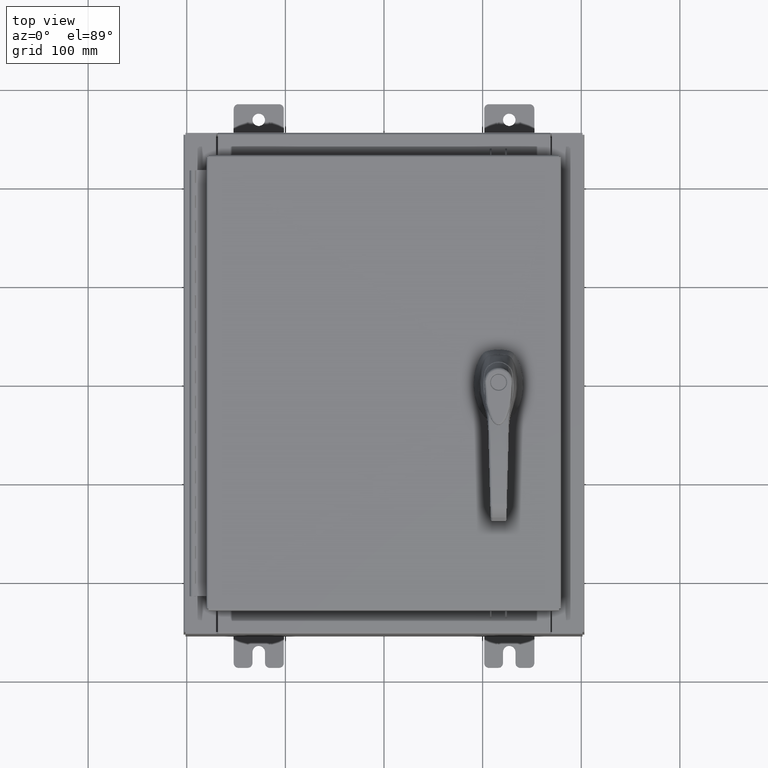
[diagram: clean part render]
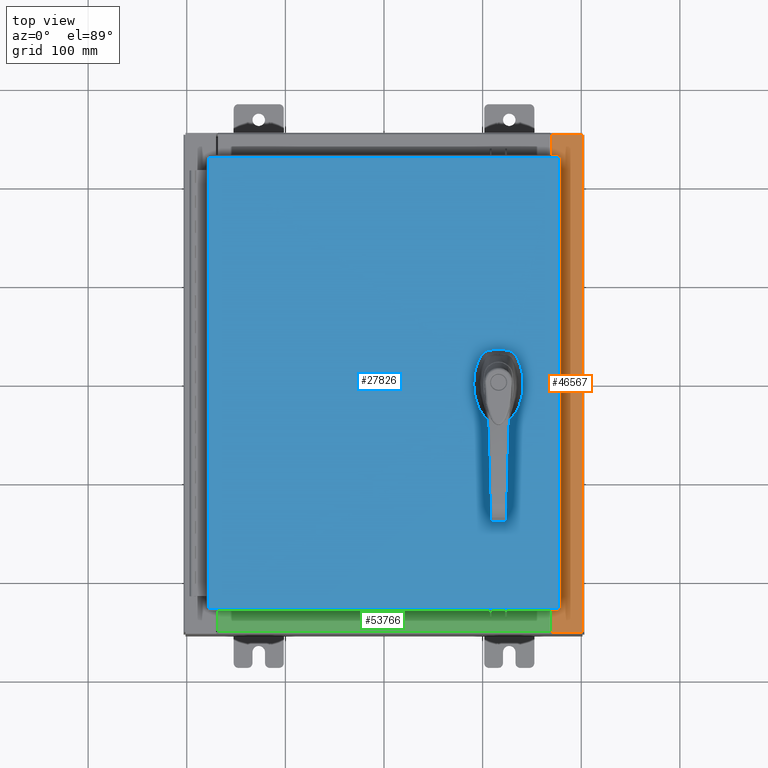
[diagram: same view with three faces highlighted in distinct colors, each labeled with its STEP entity id]
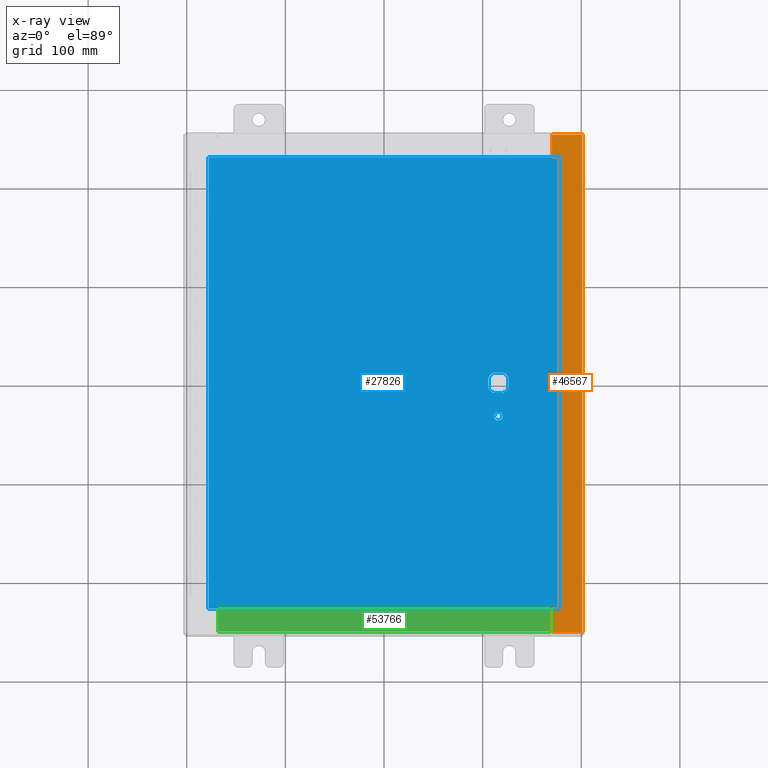
[diagram: x-ray of the same camera — body ghosted, the three highlighted faces saturated]
A machine part, top view with three faces highlighted in distinct colors.
The next image is the same camera in x-ray (body ghosted, the three faces saturated) — at least one of them is partly hidden behind the body in this view.
Their STEP definitions:

[orange] entity #46567 — the highlighted planar face has unit normal (-0, 0, -1).
#1275 = ORIENTED_EDGE ( 'NONE', *, *, #13532, .F. ) ;
#1575 = DIRECTION ( 'NONE',  ( 1.000000000000000000, -7.444398091725592200E-046, -7.132762385546378400E-015 ) ) ;
#2597 = LINE ( 'NONE', #100679, #45268 ) ;
#2701 = DIRECTION ( 'NONE',  ( -1.000000000000000000, 0.0000000000000000000, 7.132762385546378400E-015 ) ) ;
#4849 = EDGE_CURVE ( 'NONE', #49731, #96550, #25839, .T. ) ;
#5093 = CARTESIAN_POINT ( 'NONE',  ( 6.750050000000025600, 8.631099999999994700, 5.925300000000008000 ) ) ;
#5199 = ORIENTED_EDGE ( 'NONE', *, *, #28843, .F. ) ;
#6036 = EDGE_LOOP ( 'NONE', ( #91610, #76051, #74193, #34728, #87117, #10322, #1275, #101925, #26313, #68789, #5199, #72799 ) ) ;
#10322 = ORIENTED_EDGE ( 'NONE', *, *, #77918, .T. ) ;
#11658 = VERTEX_POINT ( 'NONE', #43605 ) ;
#13140 = VECTOR ( 'NONE', #104196, 39.37007874015748100 ) ;
#13481 = DIRECTION ( 'NONE',  ( 1.000000000000000000, 0.0000000000000000000, 0.0000000000000000000 ) ) ;
#13532 = EDGE_CURVE ( 'NONE', #96550, #68484, #99006, .T. ) ;
#14982 = CARTESIAN_POINT ( 'NONE',  ( 6.712700000000025600, -8.593750000000005300, 5.925300000000008000 ) ) ;
#18379 = CARTESIAN_POINT ( 'NONE',  ( 6.699700000000024900, -8.631100000000005300, 5.925300000000008000 ) ) ;
#18463 = EDGE_CURVE ( 'NONE', #95898, #49731, #83893, .T. ) ;
#18707 = CARTESIAN_POINT ( 'NONE',  ( 6.712700000000025600, 8.593749999999994700, 5.925300000000008000 ) ) ;
#19778 = CARTESIAN_POINT ( 'NONE',  ( 6.699700000000024900, -8.631100000000005300, 5.925300000000008000 ) ) ;
#19848 = LINE ( 'NONE', #18379, #105401 ) ;
#19889 = CIRCLE ( 'NONE', #64081, 0.01867499999999949400 ) ;
#20727 = CARTESIAN_POINT ( 'NONE',  ( 6.699700000000024000, 4.114355251618783500E-016, 5.925300000000008000 ) ) ;
#21546 = DIRECTION ( 'NONE',  ( 7.132762385546378400E-015, -5.504816970095138400E-017, 1.000000000000000000 ) ) ;
#22935 = VERTEX_POINT ( 'NONE', #37756 ) ;
#23520 = DIRECTION ( 'NONE',  ( -0.0000000000000000000, 1.000000000000000000, -0.0000000000000000000 ) ) ;
#25839 = CIRCLE ( 'NONE', #88504, 0.01867499999999949400 ) ;
#26313 = ORIENTED_EDGE ( 'NONE', *, *, #18463, .F. ) ;
#26600 = VERTEX_POINT ( 'NONE', #92454 ) ;
#28738 = DIRECTION ( 'NONE',  ( -0.0000000000000000000, -1.000000000000000000, -5.504816970095139000E-017 ) ) ;
#28843 = EDGE_CURVE ( 'NONE', #107514, #36433, #2597, .T. ) ;
#29500 = EDGE_CURVE ( 'NONE', #36433, #95898, #85668, .T. ) ;
#34728 = ORIENTED_EDGE ( 'NONE', *, *, #69273, .F. ) ;
#36301 = CARTESIAN_POINT ( 'NONE',  ( 6.699700000000024900, -9.925300000000001800, 5.925300000000007100 ) ) ;
#36433 = VERTEX_POINT ( 'NONE', #96693 ) ;
#36619 = VECTOR ( 'NONE', #28738, 39.37007874015748100 ) ;
#37756 = CARTESIAN_POINT ( 'NONE',  ( 6.699700000000022200, 9.925299999999992900, 5.925300000000008000 ) ) ;
#40240 = VECTOR ( 'NONE', #23520, 39.37007874015748100 ) ;
#43605 = CARTESIAN_POINT ( 'NONE',  ( 7.912300000000022300, 9.925299999999991100, 5.925299999999999100 ) ) ;
#44574 = CARTESIAN_POINT ( 'NONE',  ( 6.750050000000025600, 8.593749999999992900, 5.925300000000008000 ) ) ;
#45185 = CARTESIAN_POINT ( 'NONE',  ( 4.252457061908993700E-014, -3.261769199290503100E-016, 5.925300000000056000 ) ) ;
#45268 = VECTOR ( 'NONE', #109638, 39.37007874015748100 ) ;
#46567 = ADVANCED_FACE ( 'NONE', ( #58862 ), #62046, .F. ) ;
#47529 = LINE ( 'NONE', #52627, #50210 ) ;
#49731 = VERTEX_POINT ( 'NONE', #44574 ) ;
#49772 = VECTOR ( 'NONE', #63296, 39.37007874015748100 ) ;
#50210 = VECTOR ( 'NONE', #1575, 39.37007874015748100 ) ;
#52479 = LINE ( 'NONE', #20727, #49772 ) ;
#52627 = CARTESIAN_POINT ( 'NONE',  ( 4.252457061908993100E-014, -9.925300000000001800, 5.925300000000055100 ) ) ;
#53552 = VECTOR ( 'NONE', #103804, 39.37007874015748100 ) ;
#53761 = DIRECTION ( 'NONE',  ( -7.132762385546378400E-015, 5.504816970095137800E-017, -1.000000000000000000 ) ) ;
#56401 = EDGE_CURVE ( 'NONE', #11658, #22935, #105983, .T. ) ;
#57426 = CARTESIAN_POINT ( 'NONE',  ( 6.750050000000025600, 8.631099999999994700, 5.925300000000008000 ) ) ;
#58157 = EDGE_CURVE ( 'NONE', #91903, #105933, #52479, .T. ) ;
#58862 = FACE_OUTER_BOUND ( 'NONE', #6036, .T. ) ;
#59341 = LINE ( 'NONE', #105332, #36619 ) ;
#60305 = CARTESIAN_POINT ( 'NONE',  ( 6.712700000000025600, 8.593749999999994700, 5.925300000000008000 ) ) ;
#62046 = PLANE ( 'NONE',  #92303 ) ;
#63296 = DIRECTION ( 'NONE',  ( 1.100963394019027800E-016, -1.000000000000000000, -5.504816970095217300E-017 ) ) ;
#64081 = AXIS2_PLACEMENT_3D ( 'NONE', #72745, #21546, #81290 ) ;
#68484 = VERTEX_POINT ( 'NONE', #80833 ) ;
#68789 = ORIENTED_EDGE ( 'NONE', *, *, #29500, .F. ) ;
#69273 = EDGE_CURVE ( 'NONE', #11658, #26600, #59341, .T. ) ;
#72745 = CARTESIAN_POINT ( 'NONE',  ( 6.750050000000025600, -8.612425000000005300, 5.925300000000008000 ) ) ;
#72799 = ORIENTED_EDGE ( 'NONE', *, *, #108910, .F. ) ;
#74193 = ORIENTED_EDGE ( 'NONE', *, *, #80225, .T. ) ;
#74548 = CARTESIAN_POINT ( 'NONE',  ( 4.252457061908994400E-014, 9.925299999999996500, 5.925300000000056000 ) ) ;
#76051 = ORIENTED_EDGE ( 'NONE', *, *, #58157, .T. ) ;
#76313 = CARTESIAN_POINT ( 'NONE',  ( 6.699700000000024000, 4.114355251618783500E-016, 5.925300000000008000 ) ) ;
#77918 = EDGE_CURVE ( 'NONE', #22935, #68484, #90399, .T. ) ;
#80225 = EDGE_CURVE ( 'NONE', #105933, #26600, #47529, .T. ) ;
#80833 = CARTESIAN_POINT ( 'NONE',  ( 6.699700000000022200, 8.631099999999994700, 5.925300000000008000 ) ) ;
#81290 = DIRECTION ( 'NONE',  ( 1.000000000000000000, 0.0000000000000000000, 0.0000000000000000000 ) ) ;
#83186 = VECTOR ( 'NONE', #100339, 39.37007874015748100 ) ;
#83893 = LINE ( 'NONE', #18707, #13140 ) ;
#85668 = LINE ( 'NONE', #14982, #40240 ) ;
#86959 = VERTEX_POINT ( 'NONE', #109766 ) ;
#87117 = ORIENTED_EDGE ( 'NONE', *, *, #56401, .T. ) ;
#88504 = AXIS2_PLACEMENT_3D ( 'NONE', #101321, #100949, #13481 ) ;
#88690 = EDGE_CURVE ( 'NONE', #91903, #86959, #19848, .T. ) ;
#90399 = LINE ( 'NONE', #76313, #110500 ) ;
#90515 = CARTESIAN_POINT ( 'NONE',  ( 6.750050000000025600, -8.593750000000005300, 5.925300000000008000 ) ) ;
#91610 = ORIENTED_EDGE ( 'NONE', *, *, #88690, .F. ) ;
#91903 = VERTEX_POINT ( 'NONE', #19778 ) ;
#91966 = DIRECTION ( 'NONE',  ( 1.100963394019027800E-016, -1.000000000000000000, -5.504816970095217300E-017 ) ) ;
#92303 = AXIS2_PLACEMENT_3D ( 'NONE', #45185, #53761, #2701 ) ;
#92454 = CARTESIAN_POINT ( 'NONE',  ( 7.912300000000022300, -9.925300000000001800, 5.925299999999999100 ) ) ;
#94880 = DIRECTION ( 'NONE',  ( 1.000000000000000000, 2.170286390199955400E-014, 0.0000000000000000000 ) ) ;
#95898 = VERTEX_POINT ( 'NONE', #60305 ) ;
#96550 = VERTEX_POINT ( 'NONE', #57426 ) ;
#96693 = CARTESIAN_POINT ( 'NONE',  ( 6.712700000000025600, -8.593750000000005300, 5.925300000000008000 ) ) ;
#99006 = LINE ( 'NONE', #5093, #53552 ) ;
#100339 = DIRECTION ( 'NONE',  ( -1.000000000000000000, 4.379057701015053300E-047, 7.132762385546378400E-015 ) ) ;
#100679 = CARTESIAN_POINT ( 'NONE',  ( 6.750050000000025600, -8.593750000000005300, 5.925300000000008000 ) ) ;
#100949 = DIRECTION ( 'NONE',  ( 7.132762385546378400E-015, -5.504816970095138400E-017, 1.000000000000000000 ) ) ;
#101321 = CARTESIAN_POINT ( 'NONE',  ( 6.750050000000025600, 8.612424999999992900, 5.925300000000008000 ) ) ;
#101925 = ORIENTED_EDGE ( 'NONE', *, *, #4849, .F. ) ;
#103804 = DIRECTION ( 'NONE',  ( -1.000000000000000000, 2.170286390199861100E-014, 0.0000000000000000000 ) ) ;
#104196 = DIRECTION ( 'NONE',  ( 1.000000000000000000, 0.0000000000000000000, 0.0000000000000000000 ) ) ;
#105332 = CARTESIAN_POINT ( 'NONE',  ( 7.912300000000022300, -9.925300000000001800, 5.925299999999999100 ) ) ;
#105401 = VECTOR ( 'NONE', #94880, 39.37007874015748100 ) ;
#105933 = VERTEX_POINT ( 'NONE', #36301 ) ;
#105983 = LINE ( 'NONE', #74548, #83186 ) ;
#107514 = VERTEX_POINT ( 'NONE', #90515 ) ;
#108910 = EDGE_CURVE ( 'NONE', #86959, #107514, #19889, .T. ) ;
#109638 = DIRECTION ( 'NONE',  ( -1.000000000000000000, 0.0000000000000000000, 0.0000000000000000000 ) ) ;
#109766 = CARTESIAN_POINT ( 'NONE',  ( 6.750050000000025600, -8.631100000000005300, 5.925300000000008000 ) ) ;
#110500 = VECTOR ( 'NONE', #91966, 39.37007874015748100 ) ;

[blue] entity #27826 — the highlighted planar face has unit normal (0, 0, -1).
#78 = CARTESIAN_POINT ( 'NONE',  ( 4.578000000000002100, -1.338000000000000100, 0.0000000000000000000 ) ) ;
#506 = CARTESIAN_POINT ( 'NONE',  ( 4.578000000000002100, 0.0000000000000000000, 0.0000000000000000000 ) ) ;
#1888 = DIRECTION ( 'NONE',  ( 1.000000000000000000, 0.0000000000000000000, 0.0000000000000000000 ) ) ;
#2697 = FACE_OUTER_BOUND ( 'NONE', #93119, .T. ) ;
#3861 = VERTEX_POINT ( 'NONE', #26881 ) ;
#4326 = VERTEX_POINT ( 'NONE', #97590 ) ;
#5205 = LINE ( 'NONE', #9085, #47846 ) ;
#5510 = VERTEX_POINT ( 'NONE', #97609 ) ;
#5977 = LINE ( 'NONE', #110473, #54010 ) ;
#6381 = DIRECTION ( 'NONE',  ( -1.000000000000000000, 0.0000000000000000000, -0.0000000000000000000 ) ) ;
#6542 = EDGE_CURVE ( 'NONE', #72094, #80399, #93724, .T. ) ;
#6895 = CARTESIAN_POINT ( 'NONE',  ( 4.980999999999927900, 0.0000000000000000000, 0.0000000000000000000 ) ) ;
#7390 = CARTESIAN_POINT ( 'NONE',  ( -6.990299999999997700, -9.006299999999997800, -2.219626494852214000E-016 ) ) ;
#8653 = DIRECTION ( 'NONE',  ( 1.000000000000000000, 0.0000000000000000000, 0.0000000000000000000 ) ) ;
#9012 = EDGE_CURVE ( 'NONE', #63940, #59156, #81397, .T. ) ;
#9066 = DIRECTION ( 'NONE',  ( 1.000000000000000000, 0.0000000000000000000, 0.0000000000000000000 ) ) ;
#9085 = CARTESIAN_POINT ( 'NONE',  ( 0.0000000000000000000, 0.4029999999999252000, 0.0000000000000000000 ) ) ;
#10186 = VERTEX_POINT ( 'NONE', #65317 ) ;
#12626 = CARTESIAN_POINT ( 'NONE',  ( 4.980999999999927900, -0.2002273707563079800, 0.0000000000000000000 ) ) ;
#14492 = AXIS2_PLACEMENT_3D ( 'NONE', #506, #60162, #9066 ) ;
#18389 = CARTESIAN_POINT ( 'NONE',  ( 6.990300000000002200, 9.006300000000001300, -7.683322482180740400E-016 ) ) ;
#18668 = CARTESIAN_POINT ( 'NONE',  ( 4.175000000000076200, 0.0000000000000000000, 0.0000000000000000000 ) ) ;
#19246 = AXIS2_PLACEMENT_3D ( 'NONE', #91425, #57452, #6381 ) ;
#19265 = DIRECTION ( 'NONE',  ( -0.0000000000000000000, 0.0000000000000000000, 1.000000000000000000 ) ) ;
#19331 = CARTESIAN_POINT ( 'NONE',  ( 4.377772629243692900, 0.4029999999999252000, 0.0000000000000000000 ) ) ;
#20363 = VERTEX_POINT ( 'NONE', #79556 ) ;
#21952 = EDGE_CURVE ( 'NONE', #51172, #104739, #43457, .T. ) ;
#24707 = LINE ( 'NONE', #27659, #87462 ) ;
#26881 = CARTESIAN_POINT ( 'NONE',  ( 4.406500000000002100, -1.338000000000000100, 0.0000000000000000000 ) ) ;
#27230 = DIRECTION ( 'NONE',  ( 0.0000000000000000000, -1.000000000000000000, 0.0000000000000000000 ) ) ;
#27659 = CARTESIAN_POINT ( 'NONE',  ( -6.990299999999997700, 9.006300000000001300, -2.048885995248197400E-016 ) ) ;
#27826 = ADVANCED_FACE ( 'NONE', ( #28031, #2697, #48000 ), #65685, .F. ) ;
#28031 = FACE_BOUND ( 'NONE', #78044, .T. ) ;
#29402 = ORIENTED_EDGE ( 'NONE', *, *, #64667, .F. ) ;
#30843 = EDGE_LOOP ( 'NONE', ( #53469, #36324, #97868, #29402, #31611, #90091, #79398, #101398 ) ) ;
#31587 = VECTOR ( 'NONE', #27230, 39.37007874015748100 ) ;
#31611 = ORIENTED_EDGE ( 'NONE', *, *, #97529, .F. ) ;
#31816 = CARTESIAN_POINT ( 'NONE',  ( 0.0000000000000000000, -0.4029999999999252000, 0.0000000000000000000 ) ) ;
#33777 = EDGE_CURVE ( 'NONE', #55649, #3861, #74533, .T. ) ;
#36324 = ORIENTED_EDGE ( 'NONE', *, *, #85454, .F. ) ;
#36358 = EDGE_CURVE ( 'NONE', #59156, #97720, #24707, .T. ) ;
#37042 = CIRCLE ( 'NONE', #14492, 0.4499999999999156900 ) ;
#40422 = EDGE_CURVE ( 'NONE', #4326, #63940, #53593, .T. ) ;
#40454 = DIRECTION ( 'NONE',  ( 0.0000000000000000000, -1.000000000000000000, 0.0000000000000000000 ) ) ;
#40986 = AXIS2_PLACEMENT_3D ( 'NONE', #78, #59730, #8653 ) ;
#41478 = ORIENTED_EDGE ( 'NONE', *, *, #9012, .T. ) ;
#42322 = CARTESIAN_POINT ( 'NONE',  ( 4.578000000000002100, 0.0000000000000000000, 0.0000000000000000000 ) ) ;
#43180 = CIRCLE ( 'NONE', #94299, 0.1715000000000000700 ) ;
#43457 = LINE ( 'NONE', #6895, #46079 ) ;
#46079 = VECTOR ( 'NONE', #40454, 39.37007874015748100 ) ;
#47846 = VECTOR ( 'NONE', #68773, 39.37007874015748100 ) ;
#48000 = FACE_BOUND ( 'NONE', #30843, .T. ) ;
#48250 = VECTOR ( 'NONE', #61191, 39.37007874015748100 ) ;
#48738 = DIRECTION ( 'NONE',  ( -0.0000000000000000000, 0.0000000000000000000, 1.000000000000000000 ) ) ;
#50651 = DIRECTION ( 'NONE',  ( 1.000000000000000000, -0.0000000000000000000, -0.0000000000000000000 ) ) ;
#50874 = DIRECTION ( 'NONE',  ( 1.000000000000000000, 0.0000000000000000000, 0.0000000000000000000 ) ) ;
#51172 = VERTEX_POINT ( 'NONE', #79039 ) ;
#52921 = DIRECTION ( 'NONE',  ( -0.0000000000000000000, 0.0000000000000000000, 1.000000000000000000 ) ) ;
#53469 = ORIENTED_EDGE ( 'NONE', *, *, #21952, .T. ) ;
#53593 = LINE ( 'NONE', #61680, #96368 ) ;
#54010 = VECTOR ( 'NONE', #50651, 39.37007874015748100 ) ;
#54290 = LINE ( 'NONE', #18668, #31587 ) ;
#55215 = DIRECTION ( 'NONE',  ( -1.000000000000000000, -0.0000000000000000000, -0.0000000000000000000 ) ) ;
#55649 = VERTEX_POINT ( 'NONE', #100481 ) ;
#55756 = CARTESIAN_POINT ( 'NONE',  ( -6.990299999999997700, 9.006300000000001300, -2.048885995248197400E-016 ) ) ;
#56565 = AXIS2_PLACEMENT_3D ( 'NONE', #104129, #52921, #1888 ) ;
#56883 = ORIENTED_EDGE ( 'NONE', *, *, #101794, .T. ) ;
#57452 = DIRECTION ( 'NONE',  ( 0.0000000000000000000, 0.0000000000000000000, -1.000000000000000000 ) ) ;
#57788 = EDGE_CURVE ( 'NONE', #3861, #55649, #43180, .T. ) ;
#58220 = ORIENTED_EDGE ( 'NONE', *, *, #57788, .F. ) ;
#58694 = VECTOR ( 'NONE', #55215, 39.37007874015748100 ) ;
#59156 = VERTEX_POINT ( 'NONE', #55756 ) ;
#59730 = DIRECTION ( 'NONE',  ( -0.0000000000000000000, 0.0000000000000000000, 1.000000000000000000 ) ) ;
#60084 = ORIENTED_EDGE ( 'NONE', *, *, #40422, .T. ) ;
#60162 = DIRECTION ( 'NONE',  ( -0.0000000000000000000, 0.0000000000000000000, 1.000000000000000000 ) ) ;
#61191 = DIRECTION ( 'NONE',  ( 1.000000000000000000, 0.0000000000000000000, 0.0000000000000000000 ) ) ;
#61680 = CARTESIAN_POINT ( 'NONE',  ( 6.990300000000002200, -9.006299999999997800, -2.219626494852214000E-016 ) ) ;
#63940 = VERTEX_POINT ( 'NONE', #109636 ) ;
#64667 = EDGE_CURVE ( 'NONE', #20363, #72094, #37042, .T. ) ;
#65012 = CIRCLE ( 'NONE', #86995, 0.4499999999999156900 ) ;
#65317 = CARTESIAN_POINT ( 'NONE',  ( 4.175000000000076200, 0.2002273707563079800, 0.0000000000000000000 ) ) ;
#65685 = PLANE ( 'NONE',  #19246 ) ;
#68034 = DIRECTION ( 'NONE',  ( 0.0000000000000000000, 1.000000000000000000, 0.0000000000000000000 ) ) ;
#68773 = DIRECTION ( 'NONE',  ( -1.000000000000000000, 0.0000000000000000000, 0.0000000000000000000 ) ) ;
#70403 = CARTESIAN_POINT ( 'NONE',  ( 4.578000000000002100, 0.0000000000000000000, 0.0000000000000000000 ) ) ;
#71658 = CARTESIAN_POINT ( 'NONE',  ( 4.778227370756312100, -0.4029999999999252000, 0.0000000000000000000 ) ) ;
#72094 = VERTEX_POINT ( 'NONE', #78492 ) ;
#74533 = CIRCLE ( 'NONE', #40986, 0.1715000000000000700 ) ;
#77887 = EDGE_CURVE ( 'NONE', #102159, #10186, #65012, .T. ) ;
#78044 = EDGE_LOOP ( 'NONE', ( #101737, #58220 ) ) ;
#78492 = CARTESIAN_POINT ( 'NONE',  ( 4.377772629243692900, -0.4029999999999252000, 0.0000000000000000000 ) ) ;
#78986 = DIRECTION ( 'NONE',  ( 1.000000000000000000, 0.0000000000000000000, 0.0000000000000000000 ) ) ;
#79039 = CARTESIAN_POINT ( 'NONE',  ( 4.980999999999927900, 0.2002273707563080300, 0.0000000000000000000 ) ) ;
#79398 = ORIENTED_EDGE ( 'NONE', *, *, #88572, .F. ) ;
#79556 = CARTESIAN_POINT ( 'NONE',  ( 4.175000000000076200, -0.2002273707563079800, 0.0000000000000000000 ) ) ;
#80399 = VERTEX_POINT ( 'NONE', #71658 ) ;
#81397 = LINE ( 'NONE', #18389, #58694 ) ;
#85454 = EDGE_CURVE ( 'NONE', #80399, #104739, #105590, .T. ) ;
#86995 = AXIS2_PLACEMENT_3D ( 'NONE', #42322, #102104, #50874 ) ;
#87373 = DIRECTION ( 'NONE',  ( 0.0000000000000000000, -1.000000000000000000, 0.0000000000000000000 ) ) ;
#87462 = VECTOR ( 'NONE', #87373, 39.37007874015748100 ) ;
#88572 = EDGE_CURVE ( 'NONE', #5510, #102159, #5205, .T. ) ;
#90091 = ORIENTED_EDGE ( 'NONE', *, *, #77887, .F. ) ;
#91425 = CARTESIAN_POINT ( 'NONE',  ( 0.0000000000000000000, 0.0000000000000000000, 0.0000000000000000000 ) ) ;
#91778 = ORIENTED_EDGE ( 'NONE', *, *, #36358, .T. ) ;
#93119 = EDGE_LOOP ( 'NONE', ( #56883, #60084, #41478, #91778 ) ) ;
#93724 = LINE ( 'NONE', #31816, #48250 ) ;
#94299 = AXIS2_PLACEMENT_3D ( 'NONE', #99967, #48738, #108587 ) ;
#96368 = VECTOR ( 'NONE', #68034, 39.37007874015748100 ) ;
#97529 = EDGE_CURVE ( 'NONE', #10186, #20363, #54290, .T. ) ;
#97590 = CARTESIAN_POINT ( 'NONE',  ( 6.990300000000002200, -9.006299999999997800, -2.219626494852214000E-016 ) ) ;
#97609 = CARTESIAN_POINT ( 'NONE',  ( 4.778227370756312100, 0.4029999999999252000, 0.0000000000000000000 ) ) ;
#97720 = VERTEX_POINT ( 'NONE', #7390 ) ;
#97868 = ORIENTED_EDGE ( 'NONE', *, *, #6542, .F. ) ;
#99967 = CARTESIAN_POINT ( 'NONE',  ( 4.578000000000002100, -1.338000000000000100, 0.0000000000000000000 ) ) ;
#100481 = CARTESIAN_POINT ( 'NONE',  ( 4.749500000000002100, -1.338000000000000100, 0.0000000000000000000 ) ) ;
#101398 = ORIENTED_EDGE ( 'NONE', *, *, #106780, .F. ) ;
#101737 = ORIENTED_EDGE ( 'NONE', *, *, #33777, .F. ) ;
#101794 = EDGE_CURVE ( 'NONE', #97720, #4326, #5977, .T. ) ;
#102104 = DIRECTION ( 'NONE',  ( -0.0000000000000000000, 0.0000000000000000000, 1.000000000000000000 ) ) ;
#102159 = VERTEX_POINT ( 'NONE', #19331 ) ;
#102933 = CIRCLE ( 'NONE', #109101, 0.4499999999999156900 ) ;
#104129 = CARTESIAN_POINT ( 'NONE',  ( 4.578000000000002100, 0.0000000000000000000, 0.0000000000000000000 ) ) ;
#104739 = VERTEX_POINT ( 'NONE', #12626 ) ;
#105590 = CIRCLE ( 'NONE', #56565, 0.4499999999999156900 ) ;
#106780 = EDGE_CURVE ( 'NONE', #51172, #5510, #102933, .T. ) ;
#108587 = DIRECTION ( 'NONE',  ( 1.000000000000000000, 0.0000000000000000000, 0.0000000000000000000 ) ) ;
#109101 = AXIS2_PLACEMENT_3D ( 'NONE', #70403, #19265, #78986 ) ;
#109636 = CARTESIAN_POINT ( 'NONE',  ( 6.990300000000002200, 9.006300000000001300, -7.683322482180740400E-016 ) ) ;
#110473 = CARTESIAN_POINT ( 'NONE',  ( -6.990299999999997700, -9.006299999999997800, -2.219626494852214000E-016 ) ) ;

[green] entity #53766 — the highlighted planar face has unit normal (-0, -0, 1).
#3206 = DIRECTION ( 'NONE',  ( 0.0000000000000000000, -1.000000000000000000, 3.566381192773190000E-015 ) ) ;
#3548 = VERTEX_POINT ( 'NONE', #6885 ) ;
#5150 = EDGE_LOOP ( 'NONE', ( #37043, #72429, #54217, #75795 ) ) ;
#5171 = LINE ( 'NONE', #74277, #90602 ) ;
#6885 = CARTESIAN_POINT ( 'NONE',  ( 6.637200000000000000, -1.287299999999999900, 3.000000000000005300 ) ) ;
#10632 = VECTOR ( 'NONE', #39044, 39.37007874015748100 ) ;
#11394 = CARTESIAN_POINT ( 'NONE',  ( 0.0000000000000000000, 1.069354855923099900E-014, 3.000000000000000900 ) ) ;
#12874 = CARTESIAN_POINT ( 'NONE',  ( -6.637200000000000000, -0.07469999999999973900, 3.000000000000000900 ) ) ;
#13278 = LINE ( 'NONE', #90198, #10632 ) ;
#21395 = DIRECTION ( 'NONE',  ( -0.0000000000000000000, 1.000000000000000000, -3.566381192773190000E-015 ) ) ;
#26086 = VECTOR ( 'NONE', #72043, 39.37007874015748100 ) ;
#26138 = VERTEX_POINT ( 'NONE', #53787 ) ;
#28632 = EDGE_CURVE ( 'NONE', #26138, #3548, #13278, .T. ) ;
#31685 = DIRECTION ( 'NONE',  ( -1.000000000000000000, 0.0000000000000000000, 0.0000000000000000000 ) ) ;
#37043 = ORIENTED_EDGE ( 'NONE', *, *, #91325, .F. ) ;
#37646 = CARTESIAN_POINT ( 'NONE',  ( 0.0000000000000000000, -0.08770000000000026400, 3.000000000000001300 ) ) ;
#39044 = DIRECTION ( 'NONE',  ( -0.0000000000000000000, -1.000000000000000000, 3.566381192773190000E-015 ) ) ;
#43876 = FACE_OUTER_BOUND ( 'NONE', #5150, .T. ) ;
#44917 = LINE ( 'NONE', #12874, #87655 ) ;
#45659 = PLANE ( 'NONE',  #58273 ) ;
#48812 = CARTESIAN_POINT ( 'NONE',  ( -6.637200000000000000, -1.287299999999999200, 3.000000000000005300 ) ) ;
#53766 = ADVANCED_FACE ( 'NONE', ( #43876 ), #45659, .T. ) ;
#53787 = CARTESIAN_POINT ( 'NONE',  ( 6.637199999999999100, -0.08769999999999993100, 3.000000000000000900 ) ) ;
#54217 = ORIENTED_EDGE ( 'NONE', *, *, #28632, .F. ) ;
#54241 = DIRECTION ( 'NONE',  ( 0.0000000000000000000, 3.566381192773190000E-015, 1.000000000000000000 ) ) ;
#58273 = AXIS2_PLACEMENT_3D ( 'NONE', #11394, #54241, #3206 ) ;
#63514 = EDGE_CURVE ( 'NONE', #3548, #89043, #5171, .T. ) ;
#72043 = DIRECTION ( 'NONE',  ( -1.000000000000000000, 0.0000000000000000000, 0.0000000000000000000 ) ) ;
#72429 = ORIENTED_EDGE ( 'NONE', *, *, #63514, .F. ) ;
#72973 = CARTESIAN_POINT ( 'NONE',  ( -6.637200000000000000, -0.08770000000000026400, 3.000000000000000900 ) ) ;
#74274 = VERTEX_POINT ( 'NONE', #72973 ) ;
#74277 = CARTESIAN_POINT ( 'NONE',  ( 6.637200000000000900, -1.287299999999999900, 3.000000000000005300 ) ) ;
#75795 = ORIENTED_EDGE ( 'NONE', *, *, #81504, .T. ) ;
#81504 = EDGE_CURVE ( 'NONE', #26138, #74274, #94195, .T. ) ;
#87655 = VECTOR ( 'NONE', #21395, 39.37007874015748100 ) ;
#89043 = VERTEX_POINT ( 'NONE', #48812 ) ;
#90198 = CARTESIAN_POINT ( 'NONE',  ( 6.637200000000000000, -1.300299999999999800, 3.000000000000005300 ) ) ;
#90602 = VECTOR ( 'NONE', #31685, 39.37007874015748100 ) ;
#91325 = EDGE_CURVE ( 'NONE', #89043, #74274, #44917, .T. ) ;
#94195 = LINE ( 'NONE', #37646, #26086 ) ;